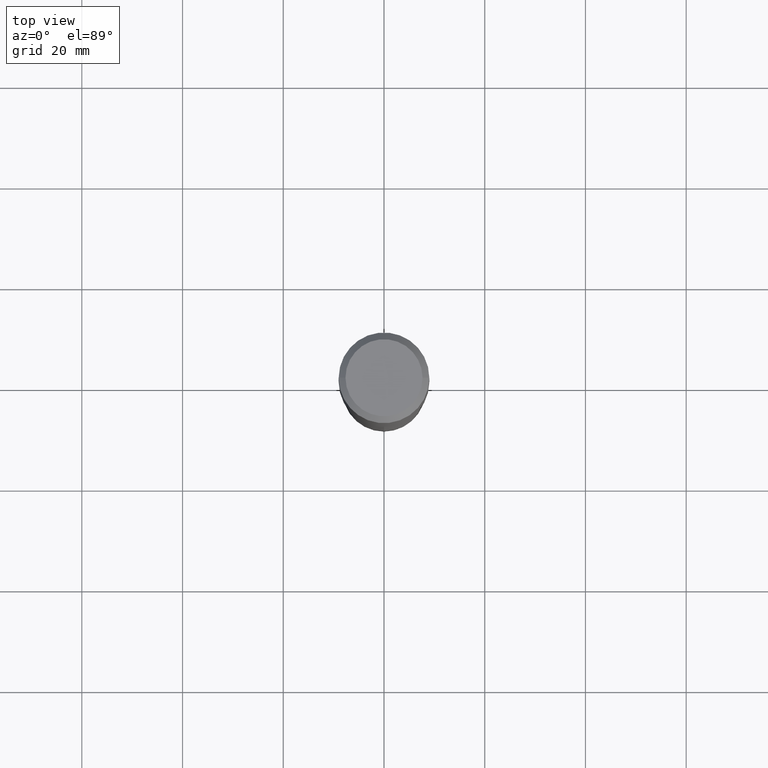
[diagram: clean part render]
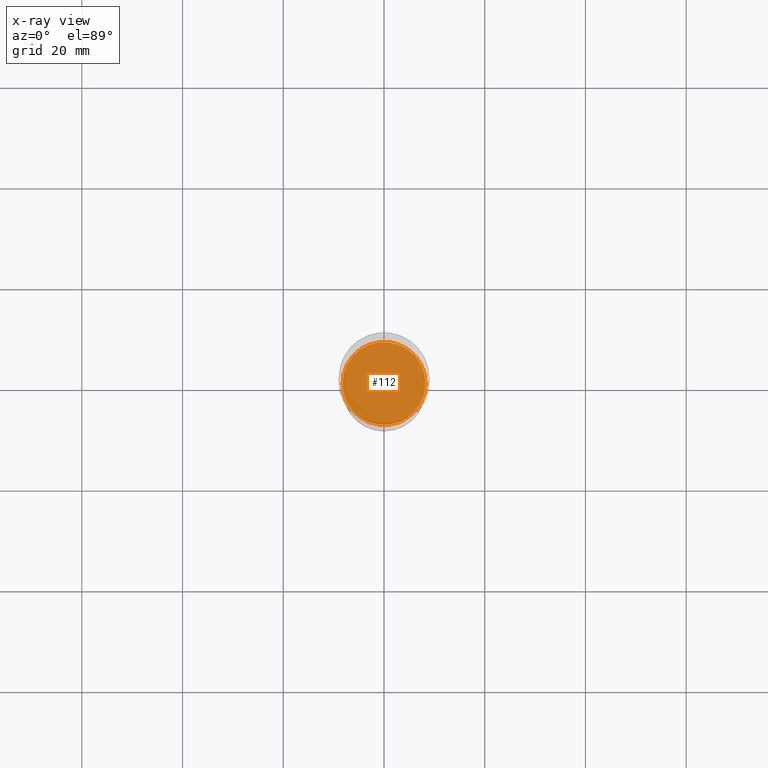
[diagram: x-ray — body ghosted, one internal face saturated and labeled with its STEP entity id]
A machine part, top view, then the same camera in x-ray: the body is ghosted and one INTERNAL B-rep face — a face not visible from any outside direction — is saturated and labeled: STEP entity #112.
In plain terms, the highlighted planar face has unit normal (-0, 0, 1).
Its self-contained STEP definition (entity closure, byte-faithful):
#28 = VERTEX_POINT ( 'NONE', #228 ) ;
#46 = CARTESIAN_POINT ( 'NONE',  ( 6.402481881473305372E-29, -9.141047293225237496E-15, -2.618099999999999650 ) ) ;
#73 = DIRECTION ( 'NONE',  ( -2.445468806185136597E-29, 3.491481338843145583E-15, 1.000000000000000000 ) ) ;
#100 = DIRECTION ( 'NONE',  ( 1.000000000000000000, -6.982962677686265922E-15, 4.876176775795935793E-29 ) ) ;
#112 = ADVANCED_FACE ( 'NONE', ( #165 ), #475, .F. ) ;
#122 = ORIENTED_EDGE ( 'NONE', *, *, #446, .F. ) ;
#131 = CARTESIAN_POINT ( 'NONE',  ( 9.482586933337312593E-29, -4.730161550263533233E-15, -2.618100000000000094 ) ) ;
#160 = AXIS2_PLACEMENT_3D ( 'NONE', #131, #236, #100 ) ;
#165 = FACE_OUTER_BOUND ( 'NONE', #389, .T. ) ;
#200 = AXIS2_PLACEMENT_3D ( 'NONE', #46, #73, #335 ) ;
#210 = AXIS2_PLACEMENT_3D ( 'NONE', #454, #419, #423 ) ;
#228 = CARTESIAN_POINT ( 'NONE',  ( -0.3243000000000000327, -6.834107973981121949E-15, -2.618099999999999650 ) ) ;
#236 = DIRECTION ( 'NONE',  ( -2.438088387897960049E-29, 3.491481338843145188E-15, 1.000000000000000000 ) ) ;
#278 = CIRCLE ( 'NONE', #200, 0.3243000000000000327 ) ;
#289 = VERTEX_POINT ( 'NONE', #298 ) ;
#298 = CARTESIAN_POINT ( 'NONE',  ( 0.3243000000000000327, -1.140562208959889397E-14, -2.618099999999999650 ) ) ;
#335 = DIRECTION ( 'NONE',  ( 1.000000000000000000, -6.982962677686266711E-15, 0.000000000000000000 ) ) ;
#389 = EDGE_LOOP ( 'NONE', ( #399, #122 ) ) ;
#399 = ORIENTED_EDGE ( 'NONE', *, *, #453, .F. ) ;
#419 = DIRECTION ( 'NONE',  ( -2.445468806185136597E-29, 3.491481338843145583E-15, 1.000000000000000000 ) ) ;
#423 = DIRECTION ( 'NONE',  ( 1.000000000000000000, -6.982962677686266711E-15, 0.000000000000000000 ) ) ;
#434 = CIRCLE ( 'NONE', #210, 0.3243000000000000327 ) ;
#446 = EDGE_CURVE ( 'NONE', #28, #289, #278, .T. ) ;
#453 = EDGE_CURVE ( 'NONE', #289, #28, #434, .T. ) ;
#454 = CARTESIAN_POINT ( 'NONE',  ( 6.402481881473305372E-29, -9.141047293225237496E-15, -2.618099999999999650 ) ) ;
#475 = PLANE ( 'NONE',  #160 ) ;